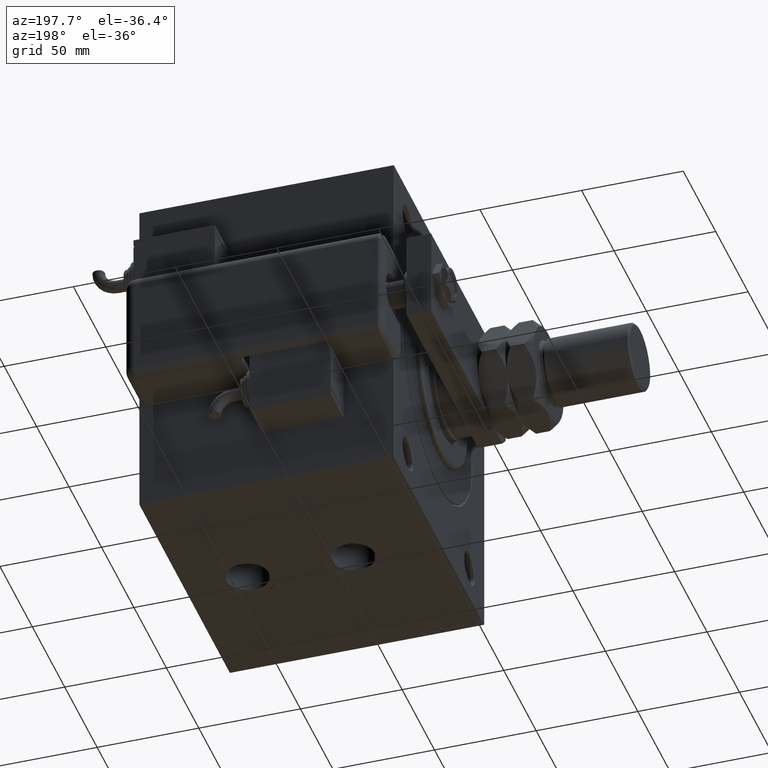
[diagram: clean part render]
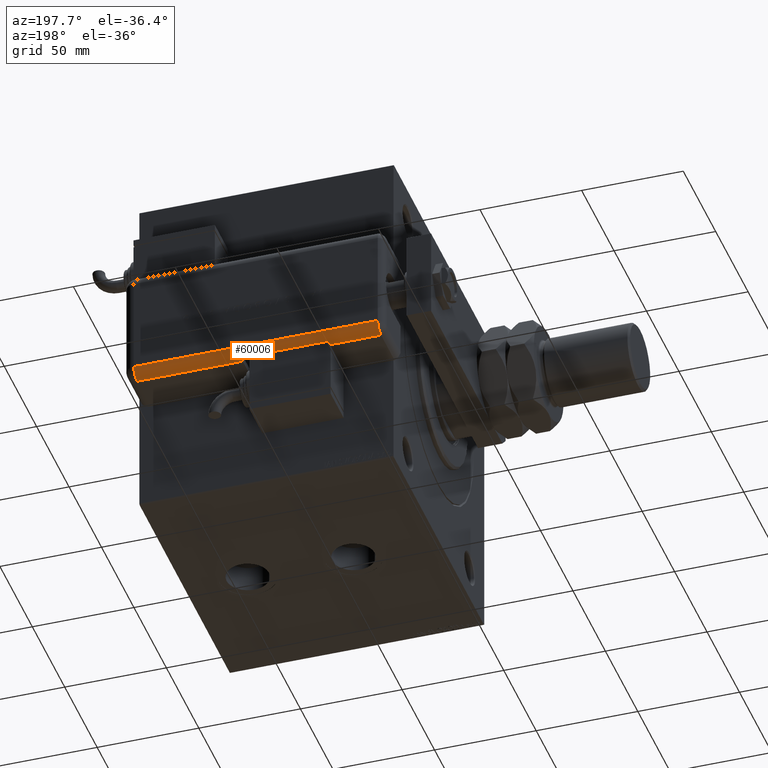
[diagram: same view with one face highlighted and labeled with its STEP entity id]
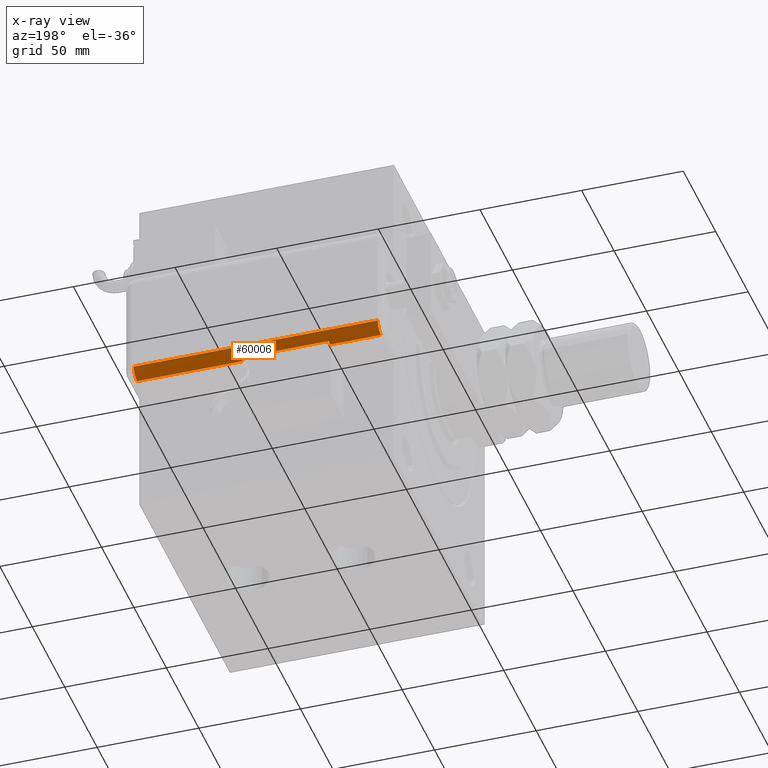
[diagram: x-ray of the same camera — body ghosted, the highlighted face saturated]
A machine part, auxiliary view. The second image highlights one B-rep face of the part: STEP entity #60006.
The next image is the same camera in x-ray: the body ghosted, the highlighted face saturated — about 0% of this face is hidden behind the body in this view.
In plain terms, the highlighted cylindrical surface (edge-blend (fillet) strip) has radius 5 mm, axis along (1, -0, -0).
Its self-contained STEP definition (entity closure, byte-faithful):
#895 = DIRECTION ( 'NONE',  ( -0.000000000000000000, -0.000000000000000000, 1.000000000000000000 ) ) ;
#2293 = DIRECTION ( 'NONE',  ( -0.000000000000000000, -0.000000000000000000, 1.000000000000000000 ) ) ;
#2361 = DIRECTION ( 'NONE',  ( -1.000000000000000000, 0.000000000000000000, 0.000000000000000000 ) ) ;
#2893 = CARTESIAN_POINT ( 'NONE',  ( -23.99999999999999645, 20.79999999999998295, 57.00000000000000711 ) ) ;
#3111 = DIRECTION ( 'NONE',  ( -0.000000000000000000, -0.000000000000000000, 1.000000000000000000 ) ) ;
#3705 = AXIS2_PLACEMENT_3D ( 'NONE', #2893, #23215, #41997 ) ;
#4179 = DIRECTION ( 'NONE',  ( 1.000000000000000000, 0.000000000000000000, 0.000000000000000000 ) ) ;
#4888 = CARTESIAN_POINT ( 'NONE',  ( -28.48998886412872267, 22.99999999999998934, 57.00000000000000711 ) ) ;
#5801 = ORIENTED_EDGE ( 'NONE', *, *, #20217, .F. ) ;
#6466 = VECTOR ( 'NONE', #10168, 1000.000000000000000 ) ;
#7328 = VERTEX_POINT ( 'NONE', #37869 ) ;
#8438 = CARTESIAN_POINT ( 'NONE',  ( -28.99999999999999645, 20.79999999999998295, 125.0000000000000000 ) ) ;
#9762 = CIRCLE ( 'NONE', #26038, 5.000000000000000888 ) ;
#10168 = DIRECTION ( 'NONE',  ( 0.000000000000000000, 0.000000000000000000, -1.000000000000000000 ) ) ;
#10440 = CARTESIAN_POINT ( 'NONE',  ( -28.48998886412872267, 22.99999999999998934, 100.0000000000000000 ) ) ;
#11913 = VECTOR ( 'NONE', #18248, 1000.000000000000000 ) ;
#11978 = LINE ( 'NONE', #8438, #48186 ) ;
#12800 = DIRECTION ( 'NONE',  ( -1.000000000000000000, 0.000000000000000000, 0.000000000000000000 ) ) ;
#12860 = CIRCLE ( 'NONE', #3705, 5.000000000000000888 ) ;
#13343 = ORIENTED_EDGE ( 'NONE', *, *, #51692, .F. ) ;
#13898 = VERTEX_POINT ( 'NONE', #10440 ) ;
#14243 = CARTESIAN_POINT ( 'NONE',  ( -23.99999999999999645, 25.79999999999998295, 5.000000000000004441 ) ) ;
#15158 = VERTEX_POINT ( 'NONE', #23044 ) ;
#15605 = EDGE_LOOP ( 'NONE', ( #60419, #5801, #56732, #27796, #13343, #57662, #25444, #28934 ) ) ;
#15973 = CARTESIAN_POINT ( 'NONE',  ( -28.99999999999999645, 20.79999999999998295, 100.0000000000000000 ) ) ;
#18248 = DIRECTION ( 'NONE',  ( 0.000000000000000000, 0.000000000000000000, -1.000000000000000000 ) ) ;
#18607 = VECTOR ( 'NONE', #3111, 1000.000000000000000 ) ;
#18800 = CARTESIAN_POINT ( 'NONE',  ( -23.99999999999999645, 20.79999999999998295, 100.0000000000000000 ) ) ;
#20217 = EDGE_CURVE ( 'NONE', #13898, #36936, #20648, .T. ) ;
#20648 = LINE ( 'NONE', #48627, #6466 ) ;
#20841 = VERTEX_POINT ( 'NONE', #15973 ) ;
#21679 = CARTESIAN_POINT ( 'NONE',  ( -23.99999999999999645, 20.79999999999998295, 125.0000000000000000 ) ) ;
#22067 = FACE_OUTER_BOUND ( 'NONE', #15605, .T. ) ;
#22272 = VERTEX_POINT ( 'NONE', #31791 ) ;
#23044 = CARTESIAN_POINT ( 'NONE',  ( -28.99999999999999645, 20.79999999999998295, 57.00000000000000711 ) ) ;
#23091 = EDGE_CURVE ( 'NONE', #15158, #22272, #11978, .T. ) ;
#23215 = DIRECTION ( 'NONE',  ( -0.000000000000000000, -0.000000000000000000, 1.000000000000000000 ) ) ;
#25444 = ORIENTED_EDGE ( 'NONE', *, *, #48134, .T. ) ;
#25727 = DIRECTION ( 'NONE',  ( -1.000000000000000000, 0.000000000000000000, 0.000000000000000000 ) ) ;
#26038 = AXIS2_PLACEMENT_3D ( 'NONE', #40341, #895, #25727 ) ;
#26358 = EDGE_CURVE ( 'NONE', #36936, #15158, #12860, .T. ) ;
#27796 = ORIENTED_EDGE ( 'NONE', *, *, #28106, .F. ) ;
#27902 = CARTESIAN_POINT ( 'NONE',  ( -23.99999999999999645, 25.79999999999998295, 125.0000000000000000 ) ) ;
#28106 = EDGE_CURVE ( 'NONE', #7328, #20841, #48749, .T. ) ;
#28934 = ORIENTED_EDGE ( 'NONE', *, *, #23091, .F. ) ;
#31172 = VERTEX_POINT ( 'NONE', #51743 ) ;
#31682 = DIRECTION ( 'NONE',  ( 0.000000000000000000, 0.000000000000000000, -1.000000000000000000 ) ) ;
#31791 = CARTESIAN_POINT ( 'NONE',  ( -28.99999999999999645, 20.79999999999998295, 5.000000000000004441 ) ) ;
#33189 = CARTESIAN_POINT ( 'NONE',  ( -28.99999999999999645, 20.79999999999998295, 125.0000000000000000 ) ) ;
#34045 = CIRCLE ( 'NONE', #45236, 5.000000000000000888 ) ;
#34483 = AXIS2_PLACEMENT_3D ( 'NONE', #50691, #56429, #2361 ) ;
#36936 = VERTEX_POINT ( 'NONE', #4888 ) ;
#37869 = CARTESIAN_POINT ( 'NONE',  ( -28.99999999999999645, 20.79999999999998295, 125.0000000000000000 ) ) ;
#38036 = EDGE_CURVE ( 'NONE', #42646, #31172, #52377, .T. ) ;
#40341 = CARTESIAN_POINT ( 'NONE',  ( -23.99999999999999645, 20.79999999999998295, 5.000000000000004441 ) ) ;
#41465 = CYLINDRICAL_SURFACE ( 'NONE', #34483, 5.000000000000000888 ) ;
#41572 = EDGE_CURVE ( 'NONE', #20841, #13898, #34045, .T. ) ;
#41997 = DIRECTION ( 'NONE',  ( -1.000000000000000000, 4.163336342344336238E-15, 0.000000000000000000 ) ) ;
#42038 = DIRECTION ( 'NONE',  ( 0.000000000000000000, -0.000000000000000000, -1.000000000000000000 ) ) ;
#42646 = VERTEX_POINT ( 'NONE', #14243 ) ;
#45236 = AXIS2_PLACEMENT_3D ( 'NONE', #18800, #42038, #4179 ) ;
#48134 = EDGE_CURVE ( 'NONE', #42646, #22272, #9762, .T. ) ;
#48186 = VECTOR ( 'NONE', #31682, 1000.000000000000000 ) ;
#48627 = CARTESIAN_POINT ( 'NONE',  ( -28.48998886412872267, 22.99999999999998934, 125.0000000000000000 ) ) ;
#48749 = LINE ( 'NONE', #33189, #11913 ) ;
#50565 = AXIS2_PLACEMENT_3D ( 'NONE', #21679, #2293, #12800 ) ;
#50691 = CARTESIAN_POINT ( 'NONE',  ( -23.99999999999999645, 20.79999999999998295, 125.0000000000000000 ) ) ;
#51692 = EDGE_CURVE ( 'NONE', #31172, #7328, #60712, .T. ) ;
#51743 = CARTESIAN_POINT ( 'NONE',  ( -23.99999999999999645, 25.79999999999998295, 125.0000000000000000 ) ) ;
#52377 = LINE ( 'NONE', #27902, #18607 ) ;
#56429 = DIRECTION ( 'NONE',  ( 0.000000000000000000, 0.000000000000000000, -1.000000000000000000 ) ) ;
#56732 = ORIENTED_EDGE ( 'NONE', *, *, #41572, .F. ) ;
#57662 = ORIENTED_EDGE ( 'NONE', *, *, #38036, .F. ) ;
#60006 = ADVANCED_FACE ( 'NONE', ( #22067 ), #41465, .T. ) ;
#60419 = ORIENTED_EDGE ( 'NONE', *, *, #26358, .F. ) ;
#60712 = CIRCLE ( 'NONE', #50565, 5.000000000000000888 ) ;